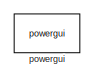
[diagram: root canvas - part 1/3, top center region]
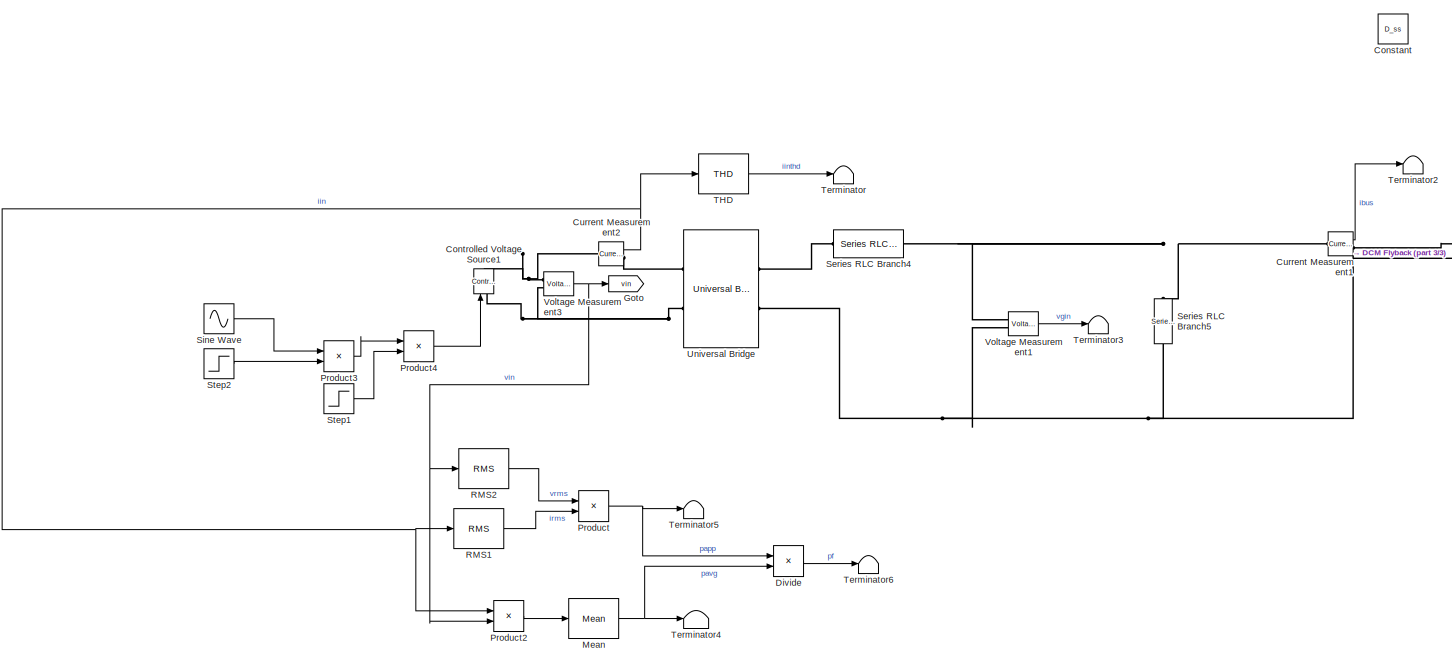
[diagram: root canvas - part 2/3, bottom left region]
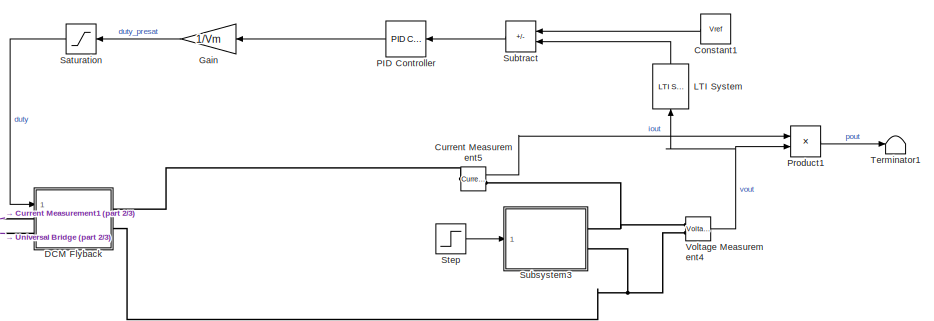
[diagram: root canvas - part 3/3, middle right region]
MODEL slx_b7a7b58b138e
KIND model
CONFIG AbsTol = auto
CONFIG EnableMultiTasking = off
CONFIG FixedStep = auto
CONFIG MaxStep = (1/60)/1000
CONFIG MinStep = auto
CONFIG RelTol = 1e-4
CONFIG SampleTimeConstraint = Unconstrained
CONFIG SolverName = ode23tb
CONFIG StartTime = 0.0
CONFIG StopTime = 2
BLOCK [Constant] Constant
  Commented = on
  Value = D_ss
BLOCK [Constant] Constant1
  NameLocation = top
  Value = Vref
BLOCK [Reference] Controlled Voltage Source1  REF=spsControlledVoltageSourceLib/Controlled Voltage Source
  NameLocation = right
  Ports = [1, 0, 0, 0, 0, 1, 1]
  SourceBlock = spsControlledVoltageSourceLib/Controlled Voltage Source
  SourceProductBaseCode = PS
  SourceType = Controlled Voltage Source
BLOCK [Reference] Current Measurement1  REF=spsCurrentMeasurementLib/Current Measurement
  Ports = [0, 1, 0, 0, 0, 1, 1]
  SourceBlock = spsCurrentMeasurementLib/Current Measurement
  SourceProductBaseCode = PS
  SourceType = Current Measurement
BLOCK [Reference] Current Measurement2  REF=spsCurrentMeasurementLib/Current Measurement
  Ports = [0, 1, 0, 0, 0, 1, 1]
  SourceBlock = spsCurrentMeasurementLib/Current Measurement
  SourceProductBaseCode = PS
  SourceType = Current Measurement
BLOCK [Reference] Current Measurement5  REF=spsCurrentMeasurementLib/Current Measurement
  Ports = [0, 1, 0, 0, 0, 1, 1]
  SourceBlock = spsCurrentMeasurementLib/Current Measurement
  SourceProductBaseCode = PS
  SourceType = Current Measurement
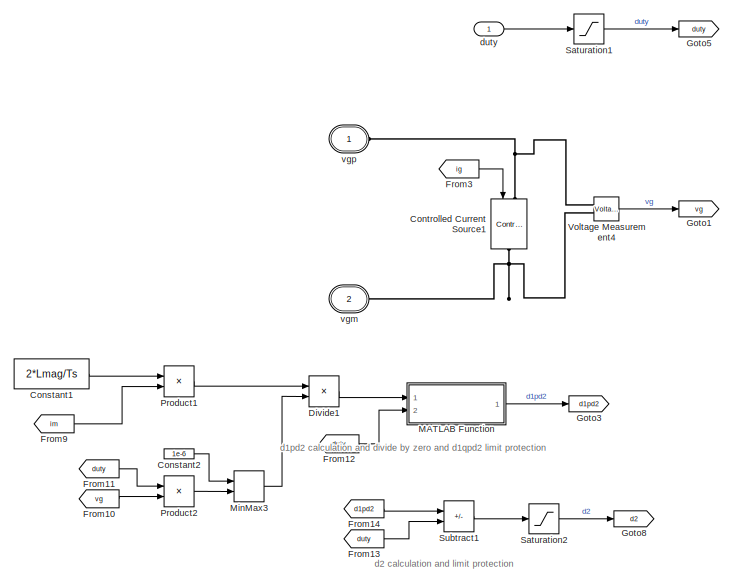
[diagram: DCM Flyback - part 1/2, left side, full height]
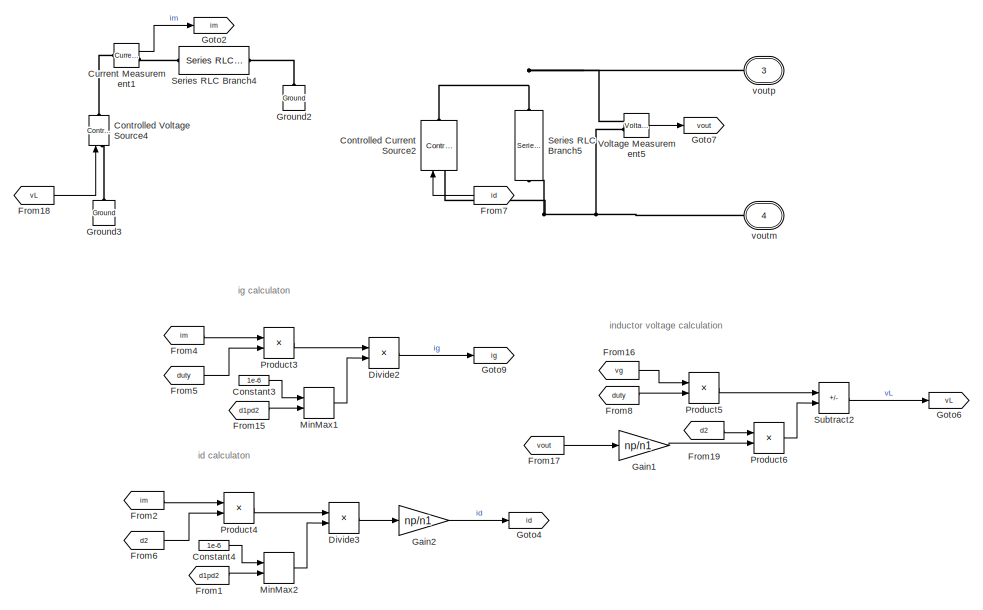
[diagram: DCM Flyback - part 2/2, right side, full height]
BLOCK [SubSystem] DCM Flyback
  Ports = [1, 0, 0, 0, 0, 2, 2]
  RequestExecContextInheritance = off
BLOCK [Constant] DCM Flyback/Constant1
  Value = 2*Lmag/Ts
BLOCK [Constant] DCM Flyback/Constant2
  Value = 1e-6
BLOCK [Constant] DCM Flyback/Constant3
  Value = 1e-6
BLOCK [Constant] DCM Flyback/Constant4
  Value = 1e-6
BLOCK [Reference] DCM Flyback/Controlled Current Source1  REF=spsControlledCurrentSourceLib/Controlled Current Source
  NameLocation = left
  Ports = [1, 0, 0, 0, 0, 1, 1]
  SourceBlock = spsControlledCurrentSourceLib/Controlled Current Source
  SourceProductBaseCode = PS
  SourceType = Controlled Current Source
BLOCK [Reference] DCM Flyback/Controlled Current Source2  REF=spsControlledCurrentSourceLib/Controlled Current Source
  NameLocation = right
  Ports = [1, 0, 0, 0, 0, 1, 1]
  SourceBlock = spsControlledCurrentSourceLib/Controlled Current Source
  SourceProductBaseCode = PS
  SourceType = Controlled Current Source
BLOCK [Reference] DCM Flyback/Controlled Voltage Source4  REF=spsControlledVoltageSourceLib/Controlled Voltage Source
  NameLocation = right
  Ports = [1, 0, 0, 0, 0, 1, 1]
  SourceBlock = spsControlledVoltageSourceLib/Controlled Voltage Source
  SourceProductBaseCode = PS
  SourceType = Controlled Voltage Source
BLOCK [Reference] DCM Flyback/Current Measurement1  REF=spsCurrentMeasurementLib/Current Measurement
  Ports = [0, 1, 0, 0, 0, 1, 1]
  SourceBlock = spsCurrentMeasurementLib/Current Measurement
  SourceProductBaseCode = PS
  SourceType = Current Measurement
BLOCK [Product] DCM Flyback/Divide1
  Inputs = */
  Ports = [2, 1]
BLOCK [Product] DCM Flyback/Divide2
  Inputs = */
  Ports = [2, 1]
BLOCK [Product] DCM Flyback/Divide3
  Inputs = */
  Ports = [2, 1]
BLOCK [From] DCM Flyback/From1
  GotoTag = d1pd2
BLOCK [From] DCM Flyback/From10
  GotoTag = vg
BLOCK [From] DCM Flyback/From11
  GotoTag = duty
BLOCK [From] DCM Flyback/From12
  GotoTag = duty
BLOCK [From] DCM Flyback/From13
  GotoTag = duty
BLOCK [From] DCM Flyback/From14
  GotoTag = d1pd2
BLOCK [From] DCM Flyback/From15
  GotoTag = d1pd2
BLOCK [From] DCM Flyback/From16
  GotoTag = vg
BLOCK [From] DCM Flyback/From17
  GotoTag = vout
BLOCK [From] DCM Flyback/From18
  GotoTag = vL
BLOCK [From] DCM Flyback/From19
  GotoTag = d2
BLOCK [From] DCM Flyback/From2
  GotoTag = im
BLOCK [From] DCM Flyback/From3
  GotoTag = ig
BLOCK [From] DCM Flyback/From4
  GotoTag = im
BLOCK [From] DCM Flyback/From5
  GotoTag = duty
BLOCK [From] DCM Flyback/From6
  GotoTag = d2
BLOCK [From] DCM Flyback/From7
  GotoTag = id
  NameLocation = top
BLOCK [From] DCM Flyback/From8
  GotoTag = duty
BLOCK [From] DCM Flyback/From9
  GotoTag = im
BLOCK [Gain] DCM Flyback/Gain1
  Gain = np/n1
BLOCK [Gain] DCM Flyback/Gain2
  Gain = np/n1
BLOCK [Goto] DCM Flyback/Goto1
  GotoTag = vg
BLOCK [Goto] DCM Flyback/Goto2
  GotoTag = im
BLOCK [Goto] DCM Flyback/Goto3
  GotoTag = d1pd2
BLOCK [Goto] DCM Flyback/Goto4
  GotoTag = id
BLOCK [Goto] DCM Flyback/Goto5
  GotoTag = duty
BLOCK [Goto] DCM Flyback/Goto6
  GotoTag = vL
BLOCK [Goto] DCM Flyback/Goto7
  GotoTag = vout
BLOCK [Goto] DCM Flyback/Goto8
  GotoTag = d2
BLOCK [Goto] DCM Flyback/Goto9
  GotoTag = ig
BLOCK [Reference] DCM Flyback/Ground2  REF=spsGroundLib/Ground
  NameLocation = right
  Ports = [0, 0, 0, 0, 0, 1]
  SourceBlock = spsGroundLib/Ground
  SourceProductBaseCode = PS
  SourceType = Ground
BLOCK [Reference] DCM Flyback/Ground3  REF=spsGroundLib/Ground
  NameLocation = right
  Ports = [0, 0, 0, 0, 0, 1]
  SourceBlock = spsGroundLib/Ground
  SourceProductBaseCode = PS
  SourceType = Ground
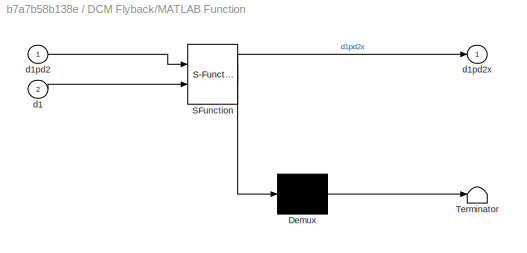
BLOCK [SubSystem] DCM Flyback/MATLAB Function
  ErrorFcn = Stateflow.Translate.translate
  PermitHierarchicalResolution = ExplicitOnly
  Ports = [2, 1]
  RequestExecContextInheritance = off
  SFBlockType = MATLAB Function
  TreatAsAtomicUnit = on
BLOCK [Demux] DCM Flyback/MATLAB Function/ Demux 
  Outputs = 1
  Ports = [1, 1]
BLOCK [S-Function] DCM Flyback/MATLAB Function/ SFunction 
  EnableBusSupport = on
  FunctionName = sf_sfun
  PortCounts = [2 2]
  Ports = [2, 2]
  SFcnIsStateOwnerBlock = off
  SFunctionDeploymentMode = off
  Tag = Stateflow S-Function 2
BLOCK [Terminator] DCM Flyback/MATLAB Function/ Terminator 
BLOCK [Inport] DCM Flyback/MATLAB Function/d1
  Port = 2
BLOCK [Inport] DCM Flyback/MATLAB Function/d1pd2
BLOCK [Outport] DCM Flyback/MATLAB Function/d1pd2x
  VectorParamsAs1DForOutWhenUnconnected = off
BLOCK [MinMax] DCM Flyback/MinMax1
  Function = max
  Inputs = 2
  Ports = [2, 1]
BLOCK [MinMax] DCM Flyback/MinMax2
  Function = max
  Inputs = 2
  Ports = [2, 1]
BLOCK [MinMax] DCM Flyback/MinMax3
  Function = max
  Inputs = 2
  Ports = [2, 1]
BLOCK [Product] DCM Flyback/Product1
  Ports = [2, 1]
BLOCK [Product] DCM Flyback/Product2
  Ports = [2, 1]
BLOCK [Product] DCM Flyback/Product3
  Ports = [2, 1]
BLOCK [Product] DCM Flyback/Product4
  Ports = [2, 1]
BLOCK [Product] DCM Flyback/Product5
  Ports = [2, 1]
BLOCK [Product] DCM Flyback/Product6
  Ports = [2, 1]
BLOCK [Saturate] DCM Flyback/Saturation1
  LowerLimit = 0
  UpperLimit = 1
BLOCK [Saturate] DCM Flyback/Saturation2
  LowerLimit = 0
  UpperLimit = 1
BLOCK [Reference] DCM Flyback/Series RLC Branch4  REF=spsSeriesRLCBranchLib/Series RLC Branch
  Ports = [0, 0, 0, 0, 0, 1, 1]
  SourceBlock = spsSeriesRLCBranchLib/Series RLC Branch
  SourceProductBaseCode = PS
  SourceType = Series RLC Branch
BLOCK [Reference] DCM Flyback/Series RLC Branch5  REF=spsSeriesRLCBranchLib/Series RLC Branch
  NameLocation = left
  Ports = [0, 0, 0, 0, 0, 1, 1]
  SourceBlock = spsSeriesRLCBranchLib/Series RLC Branch
  SourceProductBaseCode = PS
  SourceType = Series RLC Branch
BLOCK [Sum] DCM Flyback/Subtract1
  IconShape = rectangular
  Inputs = +-
  Ports = [2, 1]
BLOCK [Sum] DCM Flyback/Subtract2
  IconShape = rectangular
  Inputs = +-
  Ports = [2, 1]
BLOCK [Reference] DCM Flyback/Voltage Measurement4  REF=spsVoltageMeasurementLib/Voltage Measurement
  Ports = [0, 1, 0, 0, 0, 2]
  SourceBlock = spsVoltageMeasurementLib/Voltage Measurement
  SourceProductBaseCode = PS
  SourceType = Voltage Measurement
BLOCK [Reference] DCM Flyback/Voltage Measurement5  REF=spsVoltageMeasurementLib/Voltage Measurement
  Ports = [0, 1, 0, 0, 0, 2]
  SourceBlock = spsVoltageMeasurementLib/Voltage Measurement
  SourceProductBaseCode = PS
  SourceType = Voltage Measurement
BLOCK [Inport] DCM Flyback/duty
BLOCK [PMIOPort] DCM Flyback/vgm
  Port = 2
  Side = Left
  Tag = PMCPort
BLOCK [PMIOPort] DCM Flyback/vgp
  Side = Left
  Tag = PMCPort
BLOCK [PMIOPort] DCM Flyback/voutm
  NameLocation = top
  Port = 4
  Side = Right
  Tag = PMCPort
BLOCK [PMIOPort] DCM Flyback/voutp
  NameLocation = top
  Port = 3
  Side = Right
  Tag = PMCPort
BLOCK [Product] Divide
  Inputs = /*
  Ports = [2, 1]
BLOCK [Gain] Gain
  Gain = 1/Vm
  NameLocation = top
BLOCK [Goto] Goto
  GotoTag = vin
BLOCK [Reference] LTI System  REF=cstblocks/LTI System
  NameLocation = right
  Ports = [1, 1]
  SourceBlock = cstblocks/LTI System
  SourceProductBaseCode = CT
  SourceType = LTI Block
BLOCK [Reference] Mean  REF=spsMeanLib/Mean
  Ports = [1, 1]
  SourceBlock = spsMeanLib/Mean
  SourceProductBaseCode = PS
  SourceType = Mean
BLOCK [Reference] PID Controller  REF=pid_lib/PID Controller
  NameLocation = top
  Ports = [1, 1]
  SourceBlock = pid_lib/PID Controller
  SourceProductBaseCode = SL
  SourceType = PID 1dof
BLOCK [Product] Product
  Ports = [2, 1]
BLOCK [Product] Product1
  Ports = [2, 1]
BLOCK [Product] Product2
  Ports = [2, 1]
BLOCK [Product] Product3
  Ports = [2, 1]
BLOCK [Product] Product4
  Ports = [2, 1]
BLOCK [Reference] RMS1  REF=spsRMSLib/RMS
  Ports = [1, 1]
  SourceBlock = spsRMSLib/RMS
  SourceProductBaseCode = PS
  SourceType = RMS
BLOCK [Reference] RMS2  REF=spsRMSLib/RMS
  Ports = [1, 1]
  SourceBlock = spsRMSLib/RMS
  SourceProductBaseCode = PS
  SourceType = RMS
BLOCK [Saturate] Saturation
  LowerLimit = 0
  NameLocation = top
  UpperLimit = 1
BLOCK [Reference] Series RLC Branch4  REF=spsSeriesRLCBranchLib/Series RLC Branch
  Ports = [0, 0, 0, 0, 0, 1, 1]
  SourceBlock = spsSeriesRLCBranchLib/Series RLC Branch
  SourceProductBaseCode = PS
  SourceType = Series RLC Branch
BLOCK [Reference] Series RLC Branch5  REF=spsSeriesRLCBranchLib/Series RLC Branch
  NameLocation = left
  Ports = [0, 0, 0, 0, 0, 1, 1]
  SourceBlock = spsSeriesRLCBranchLib/Series RLC Branch
  SourceProductBaseCode = PS
  SourceType = Series RLC Branch
BLOCK [Sin] Sine Wave
  Amplitude = Vin_rms*sqrt(2)
  Frequency = 2*pi*freq_in
  Ports = [0, 1]
  SampleTime = 0
BLOCK [Step] Step
  After = 0.5*Pload
  Before = Pload
  SampleTime = 0
  Time = 1.2
BLOCK [Step] Step1
  After = 100
  Before = 1
  SampleTime = 0
  Time = 0.4333
BLOCK [Step] Step2
  After = 0.01
  Before = 1
  SampleTime = 0
  Time = 0.4
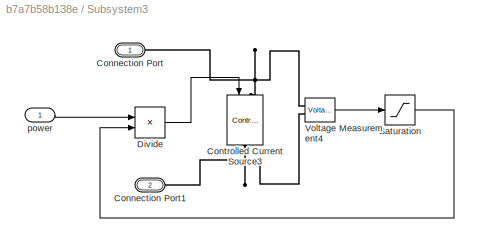
BLOCK [SubSystem] Subsystem3
  Ports = [1, 0, 0, 0, 0, 0, 2]
  RequestExecContextInheritance = off
BLOCK [PMIOPort] Subsystem3/Connection Port
  Side = Right
BLOCK [PMIOPort] Subsystem3/Connection Port1
  Port = 2
  Side = Right
BLOCK [Reference] Subsystem3/Controlled Current Source3  REF=spsControlledCurrentSourceLib/Controlled Current Source
  NameLocation = left
  Ports = [1, 0, 0, 0, 0, 1, 1]
  SourceBlock = spsControlledCurrentSourceLib/Controlled Current Source
  SourceProductBaseCode = PS
  SourceType = Controlled Current Source
BLOCK [Product] Subsystem3/Divide
  Inputs = */
  Ports = [2, 1]
BLOCK [Saturate] Subsystem3/Saturation
  LowerLimit = 1e-3
  UpperLimit = inf
BLOCK [Reference] Subsystem3/Voltage Measurement4  REF=spsVoltageMeasurementLib/Voltage Measurement
  Ports = [0, 1, 0, 0, 0, 2]
  SourceBlock = spsVoltageMeasurementLib/Voltage Measurement
  SourceProductBaseCode = PS
  SourceType = Voltage Measurement
BLOCK [Inport] Subsystem3/power
BLOCK [Sum] Subtract
  IconShape = rectangular
  Inputs = +-
  NameLocation = top
  Ports = [2, 1]
BLOCK [Reference] THD  REF=spsTHDLib/THD
  Ports = [1, 1]
  SourceBlock = spsTHDLib/THD
  SourceProductBaseCode = PS
  SourceType = THD
BLOCK [Terminator] Terminator
BLOCK [Terminator] Terminator1
BLOCK [Terminator] Terminator2
BLOCK [Terminator] Terminator3
BLOCK [Terminator] Terminator4
BLOCK [Terminator] Terminator5
BLOCK [Terminator] Terminator6
BLOCK [Reference] Universal Bridge  REF=spsUniversalBridgeLib/Universal Bridge
  Ports = [0, 0, 0, 0, 0, 2, 2]
  SourceBlock = spsUniversalBridgeLib/Universal Bridge
  SourceProductBaseCode = PS
  SourceType = Universal Bridge
BLOCK [Reference] Voltage Measurement1  REF=spsVoltageMeasurementLib/Voltage Measurement
  Ports = [0, 1, 0, 0, 0, 2]
  SourceBlock = spsVoltageMeasurementLib/Voltage Measurement
  SourceProductBaseCode = PS
  SourceType = Voltage Measurement
BLOCK [Reference] Voltage Measurement3  REF=spsVoltageMeasurementLib/Voltage Measurement
  Ports = [0, 1, 0, 0, 0, 2]
  SourceBlock = spsVoltageMeasurementLib/Voltage Measurement
  SourceProductBaseCode = PS
  SourceType = Voltage Measurement
BLOCK [Reference] Voltage Measurement4  REF=spsVoltageMeasurementLib/Voltage Measurement
  Ports = [0, 1, 0, 0, 0, 2]
  SourceBlock = spsVoltageMeasurementLib/Voltage Measurement
  SourceProductBaseCode = PS
  SourceType = Voltage Measurement
BLOCK [Reference] powergui  REF=spspowerguiLib/powergui
  Ports = []
  Priority = 1
  SourceBlock = spspowerguiLib/powergui
  SourceProductBaseCode = PS
  SourceType = PSB option menu block
ANNOTATION DCM Flyback: d1pd2 calculation and divide by zero and d1qpd2 limit protection
ANNOTATION DCM Flyback: d2 calculation and limit protection
ANNOTATION DCM Flyback: id calculaton
ANNOTATION DCM Flyback: ig calculaton
ANNOTATION DCM Flyback: inductor voltage calculation
LINE Constant1:1 -> Subtract:1
LINE Current Measurement1:1 -> Terminator2:1
NET Current Measurement2:1 -> Product2:1, RMS1:1, THD:1
LINE Current Measurement5:1 -> Product1:1
LINE DCM Flyback/Constant1:1 -> DCM Flyback/Product1:1
LINE DCM Flyback/Constant2:1 -> DCM Flyback/MinMax3:1
LINE DCM Flyback/Constant3:1 -> DCM Flyback/MinMax1:1
LINE DCM Flyback/Constant4:1 -> DCM Flyback/MinMax2:1
LINE DCM Flyback/Current Measurement1:1 -> DCM Flyback/Goto2:1
LINE DCM Flyback/Divide1:1 -> DCM Flyback/MATLAB Function:1
LINE DCM Flyback/Divide2:1 -> DCM Flyback/Goto9:1
LINE DCM Flyback/Divide3:1 -> DCM Flyback/Gain2:1
LINE DCM Flyback/From10:1 -> DCM Flyback/Product2:2
LINE DCM Flyback/From11:1 -> DCM Flyback/Product2:1
LINE DCM Flyback/From12:1 -> DCM Flyback/MATLAB Function:2
LINE DCM Flyback/From13:1 -> DCM Flyback/Subtract1:2
LINE DCM Flyback/From14:1 -> DCM Flyback/Subtract1:1
LINE DCM Flyback/From15:1 -> DCM Flyback/MinMax1:2
LINE DCM Flyback/From16:1 -> DCM Flyback/Product5:1
LINE DCM Flyback/From17:1 -> DCM Flyback/Gain1:1
LINE DCM Flyback/From18:1 -> DCM Flyback/Controlled Voltage Source4:1
LINE DCM Flyback/From19:1 -> DCM Flyback/Product6:1
LINE DCM Flyback/From1:1 -> DCM Flyback/MinMax2:2
LINE DCM Flyback/From2:1 -> DCM Flyback/Product4:1
LINE DCM Flyback/From3:1 -> DCM Flyback/Controlled Current Source1:1
LINE DCM Flyback/From4:1 -> DCM Flyback/Product3:1
LINE DCM Flyback/From5:1 -> DCM Flyback/Product3:2
LINE DCM Flyback/From6:1 -> DCM Flyback/Product4:2
LINE DCM Flyback/From7:1 -> DCM Flyback/Controlled Current Source2:1
LINE DCM Flyback/From8:1 -> DCM Flyback/Product5:2
LINE DCM Flyback/From9:1 -> DCM Flyback/Product1:2
LINE DCM Flyback/Gain1:1 -> DCM Flyback/Product6:2
LINE DCM Flyback/Gain2:1 -> DCM Flyback/Goto4:1
LINE DCM Flyback/MATLAB Function:1 -> DCM Flyback/Goto3:1
LINE DCM Flyback/MinMax1:1 -> DCM Flyback/Divide2:2
LINE DCM Flyback/MinMax2:1 -> DCM Flyback/Divide3:2
LINE DCM Flyback/MinMax3:1 -> DCM Flyback/Divide1:2
LINE DCM Flyback/Product1:1 -> DCM Flyback/Divide1:1
LINE DCM Flyback/Product2:1 -> DCM Flyback/MinMax3:2
LINE DCM Flyback/Product3:1 -> DCM Flyback/Divide2:1
LINE DCM Flyback/Product4:1 -> DCM Flyback/Divide3:1
LINE DCM Flyback/Product5:1 -> DCM Flyback/Subtract2:1
LINE DCM Flyback/Product6:1 -> DCM Flyback/Subtract2:2
LINE DCM Flyback/Saturation1:1 -> DCM Flyback/Goto5:1
LINE DCM Flyback/Saturation2:1 -> DCM Flyback/Goto8:1
LINE DCM Flyback/Subtract1:1 -> DCM Flyback/Saturation2:1
LINE DCM Flyback/Subtract2:1 -> DCM Flyback/Goto6:1
LINE DCM Flyback/Voltage Measurement4:1 -> DCM Flyback/Goto1:1
LINE DCM Flyback/Voltage Measurement5:1 -> DCM Flyback/Goto7:1
LINE DCM Flyback/duty:1 -> DCM Flyback/Saturation1:1
LINE Divide:1 -> Terminator6:1
LINE Gain:1 -> Saturation:1
LINE LTI System:1 -> Subtract:2
NET Mean:1 -> Divide:2, Terminator4:1
LINE PID Controller:1 -> Gain:1
LINE Product1:1 -> Terminator1:1
LINE Product2:1 -> Mean:1
LINE Product3:1 -> Product4:1
LINE Product4:1 -> Controlled Voltage Source1:1
NET Product:1 -> Divide:1, Terminator5:1
LINE RMS1:1 -> Product:2
LINE RMS2:1 -> Product:1
LINE Saturation:1 -> DCM Flyback:1
LINE Sine Wave:1 -> Product3:1
LINE Step1:1 -> Product4:2
LINE Step2:1 -> Product3:2
LINE Step:1 -> Subsystem3:1
LINE Subsystem3/Divide:1 -> Subsystem3/Controlled Current Source3:1
LINE Subsystem3/Saturation:1 -> Subsystem3/Divide:2
LINE Subsystem3/Voltage Measurement4:1 -> Subsystem3/Saturation:1
LINE Subsystem3/power:1 -> Subsystem3/Divide:1
LINE Subtract:1 -> PID Controller:1
LINE THD:1 -> Terminator:1
LINE Voltage Measurement1:1 -> Terminator3:1
NET Voltage Measurement3:1 -> Goto:1, Product2:2, RMS2:1
NET Voltage Measurement4:1 -> LTI System:1, Product1:2
PNET net1: Controlled Voltage Source1:LConn1 -- Universal Bridge:LConn2 -- Voltage Measurement3:LConn2
PNET net2: Controlled Voltage Source1:RConn1 -- Current Measurement2:LConn1 -- Voltage Measurement3:LConn1
PNET net3: Current Measurement1:LConn1 -- Series RLC Branch4:RConn1 -- Series RLC Branch5:LConn1 -- Voltage Measurement1:LConn1
PLINE Current Measurement1:RConn1 -- DCM Flyback:LConn1
PLINE Current Measurement2:RConn1 -- Universal Bridge:LConn1
PLINE Current Measurement5:LConn1 -- DCM Flyback:RConn1
PNET net4: Current Measurement5:RConn1 -- Subsystem3:RConn1 -- Voltage Measurement4:LConn1
PNET net5: DCM Flyback/Controlled Current Source1:LConn1 -- DCM Flyback/Voltage Measurement4:LConn1 -- DCM Flyback/vgp:RConn1
PNET net6: DCM Flyback/Controlled Current Source1:RConn1 -- DCM Flyback/Voltage Measurement4:LConn2 -- DCM Flyback/vgm:RConn1
PNET net7: DCM Flyback/Controlled Current Source2:LConn1 -- DCM Flyback/Series RLC Branch5:RConn1 -- DCM Flyback/Voltage Measurement5:LConn2 -- DCM Flyback/voutm:RConn1
PNET net8: DCM Flyback/Controlled Current Source2:RConn1 -- DCM Flyback/Series RLC Branch5:LConn1 -- DCM Flyback/Voltage Measurement5:LConn1 -- DCM Flyback/voutp:RConn1
PLINE DCM Flyback/Controlled Voltage Source4:LConn1 -- DCM Flyback/Ground3:LConn1
PLINE DCM Flyback/Controlled Voltage Source4:RConn1 -- DCM Flyback/Current Measurement1:LConn1
PLINE DCM Flyback/Current Measurement1:RConn1 -- DCM Flyback/Series RLC Branch4:LConn1
PLINE DCM Flyback/Ground2:LConn1 -- DCM Flyback/Series RLC Branch4:RConn1
PNET net9: DCM Flyback:LConn2 -- Series RLC Branch5:RConn1 -- Universal Bridge:RConn2 -- Voltage Measurement1:LConn2
PNET net10: DCM Flyback:RConn2 -- Subsystem3:RConn2 -- Voltage Measurement4:LConn2
PLINE Series RLC Branch4:LConn1 -- Universal Bridge:RConn1
PNET net11: Subsystem3/Connection Port1:RConn1 -- Subsystem3/Controlled Current Source3:RConn1 -- Subsystem3/Voltage Measurement4:LConn2
PNET net12: Subsystem3/Connection Port:RConn1 -- Subsystem3/Controlled Current Source3:LConn1 -- Subsystem3/Voltage Measurement4:LConn1
note: NET lines group one-source signal fan-out (src -> all destinations, sorted); 1:1 wires keep LINE; PNET lines group multi-terminal physical nets as a canonical sorted terminal list (undirected conserving connections); 2-terminal nets keep the pairwise PLINE form
CHART DCM Flyback/MATLAB Function states=1 transitions=1
  STATE_LABEL 'eML_blk_kernel()'
  STATE_LABEL 'SCRIPT:\nfunction d1pd2x = fcn(d1pd2,d1)\n\nd1pd2x = d1pd2;\n\nif(d1pd2<=d1)\n    d1pd2=d1;\nend\n\nif(d1pd2>=1)\n    d1pd2=1;\nend\n\nend\n'
CHART  states=0 transitions=0
